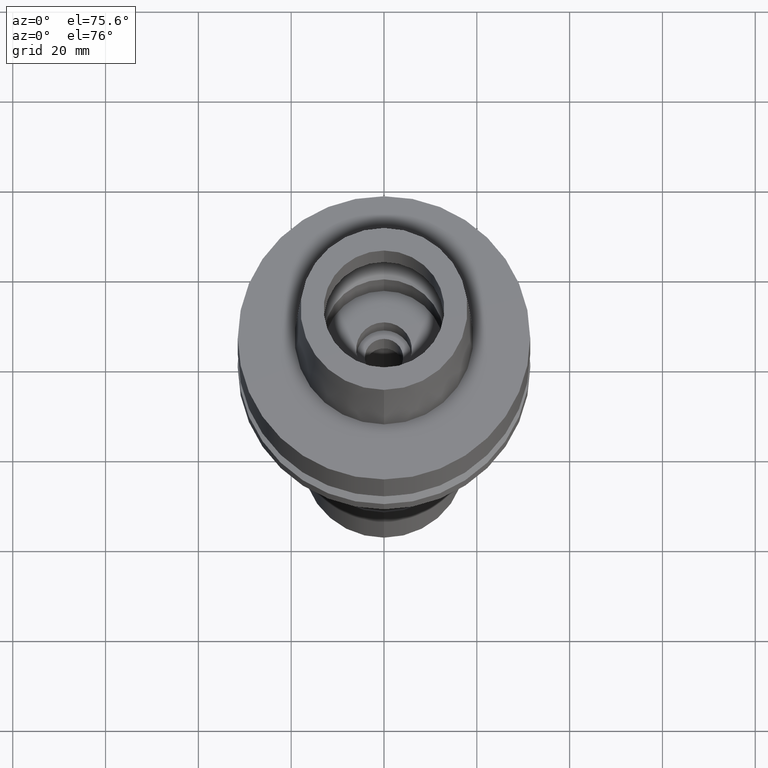
[diagram: clean part render]
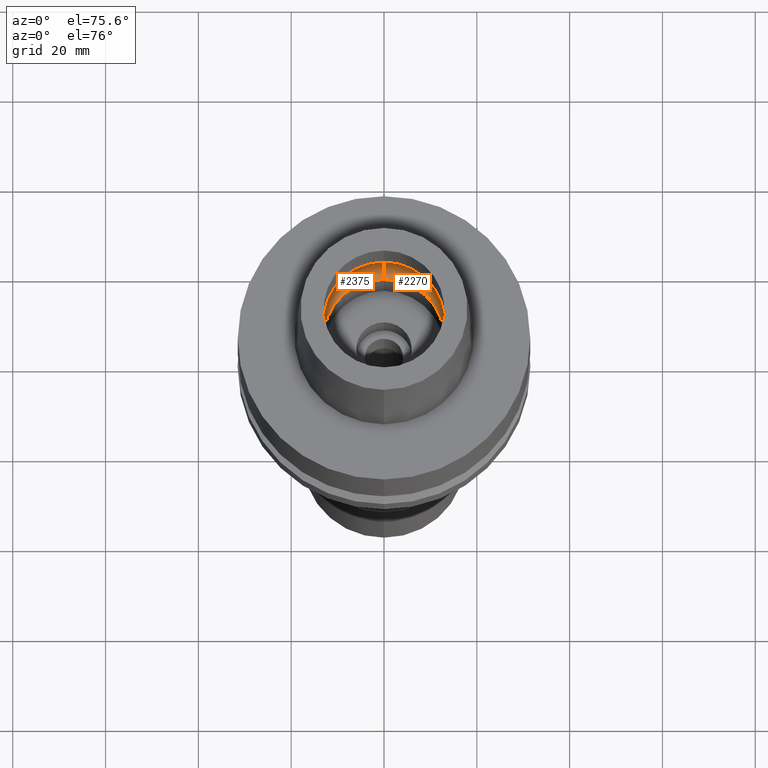
[diagram: same view with one multi-face feature highlighted, each face labeled with its STEP entity id]
A machine part, auxiliary view. The highlighted faces form ONE feature: a constant-radius fillet chain: 2 tangent blend faces with common blend radius 6 mm. The faces share edges in the B-rep.
Their STEP definitions:
[1] entity #2270 (Torus):
#290 = CIRCLE ( 'NONE', #1374, 6.000000000000000000 ) ;
#330 = DIRECTION ( 'NONE',  ( 0.0000000000000000000, 0.5000000000000169864, -0.8660254037844289376 ) ) ;
#352 = EDGE_LOOP ( 'NONE', ( #2171, #2333, #1375, #606 ) ) ;
#501 = DIRECTION ( 'NONE',  ( 0.0000000000000000000, 1.000000000000000000, 0.0000000000000000000 ) ) ;
#533 = CARTESIAN_POINT ( 'NONE',  ( 0.0000000000000000000, 0.0000000000000000000, 5.245999999999999552 ) ) ;
#594 = TOROIDAL_SURFACE ( 'NONE', #2637, 10.00000000000000000, 6.000000000000000000 ) ;
#606 = ORIENTED_EDGE ( 'NONE', *, *, #924, .F. ) ;
#614 = DIRECTION ( 'NONE',  ( 0.0000000000000000000, 0.0000000000000000000, 1.000000000000000000 ) ) ;
#695 = VERTEX_POINT ( 'NONE', #736 ) ;
#736 = CARTESIAN_POINT ( 'NONE',  ( 0.0000000000000000000, 16.00000000000000000, 5.245999999999999552 ) ) ;
#826 = CARTESIAN_POINT ( 'NONE',  ( 0.0000000000000000000, 0.0000000000000000000, 0.04984757729334999415 ) ) ;
#924 = EDGE_CURVE ( 'NONE', #1176, #695, #290, .T. ) ;
#929 = CARTESIAN_POINT ( 'NONE',  ( 0.0000000000000000000, 13.00000000000000000, 0.04984757729336000004 ) ) ;
#969 = DIRECTION ( 'NONE',  ( 0.0000000000000000000, 0.0000000000000000000, 1.000000000000000000 ) ) ;
#1073 = DIRECTION ( 'NONE',  ( 0.0000000000000000000, 0.0000000000000000000, -1.000000000000000000 ) ) ;
#1176 = VERTEX_POINT ( 'NONE', #929 ) ;
#1228 = CARTESIAN_POINT ( 'NONE',  ( 0.0000000000000000000, 10.00000000000000000, 5.245999999999999552 ) ) ;
#1305 = VERTEX_POINT ( 'NONE', #2122 ) ;
#1374 = AXIS2_PLACEMENT_3D ( 'NONE', #1228, #1447, #330 ) ;
#1375 = ORIENTED_EDGE ( 'NONE', *, *, #1438, .F. ) ;
#1422 = EDGE_CURVE ( 'NONE', #1305, #1176, #2032, .T. ) ;
#1438 = EDGE_CURVE ( 'NONE', #695, #2583, #2640, .T. ) ;
#1447 = DIRECTION ( 'NONE',  ( 1.000000000000000000, 0.0000000000000000000, 0.0000000000000000000 ) ) ;
#1526 = DIRECTION ( 'NONE',  ( 0.0000000000000000000, -1.000000000000000000, 0.0000000000000000000 ) ) ;
#1538 = AXIS2_PLACEMENT_3D ( 'NONE', #826, #614, #1526 ) ;
#2032 = CIRCLE ( 'NONE', #1538, 13.00000000000000000 ) ;
#2070 = FACE_OUTER_BOUND ( 'NONE', #352, .T. ) ;
#2122 = CARTESIAN_POINT ( 'NONE',  ( 0.0000000000000000000, -13.00000000000000000, 0.04984757729334999415 ) ) ;
#2171 = ORIENTED_EDGE ( 'NONE', *, *, #1422, .F. ) ;
#2270 = ADVANCED_FACE ( 'NONE', ( #2070 ), #594, .F. ) ;
#2310 = AXIS2_PLACEMENT_3D ( 'NONE', #2453, #2736, #2519 ) ;
#2313 = CIRCLE ( 'NONE', #2310, 6.000000000000000000 ) ;
#2333 = ORIENTED_EDGE ( 'NONE', *, *, #2371, .T. ) ;
#2367 = CARTESIAN_POINT ( 'NONE',  ( 0.0000000000000000000, 0.0000000000000000000, 5.245999999999999552 ) ) ;
#2371 = EDGE_CURVE ( 'NONE', #1305, #2583, #2313, .T. ) ;
#2453 = CARTESIAN_POINT ( 'NONE',  ( 0.0000000000000000000, -10.00000000000000000, 5.245999999999999552 ) ) ;
#2519 = DIRECTION ( 'NONE',  ( 0.0000000000000000000, -0.5000000000000169864, -0.8660254037844289376 ) ) ;
#2532 = CARTESIAN_POINT ( 'NONE',  ( 0.0000000000000000000, -16.00000000000000000, 5.245999999999999552 ) ) ;
#2583 = VERTEX_POINT ( 'NONE', #2532 ) ;
#2637 = AXIS2_PLACEMENT_3D ( 'NONE', #533, #969, #501 ) ;
#2640 = CIRCLE ( 'NONE', #2779, 16.00000000000000000 ) ;
#2736 = DIRECTION ( 'NONE',  ( -1.000000000000000000, 0.0000000000000000000, 0.0000000000000000000 ) ) ;
#2779 = AXIS2_PLACEMENT_3D ( 'NONE', #2367, #1073, #2818 ) ;
#2818 = DIRECTION ( 'NONE',  ( 0.0000000000000000000, 1.000000000000000000, 0.0000000000000000000 ) ) ;
[2] entity #2375 (Torus):
#290 = CIRCLE ( 'NONE', #1374, 6.000000000000000000 ) ;
#301 = DIRECTION ( 'NONE',  ( 0.0000000000000000000, 1.000000000000000000, 0.0000000000000000000 ) ) ;
#322 = ORIENTED_EDGE ( 'NONE', *, *, #329, .F. ) ;
#329 = EDGE_CURVE ( 'NONE', #1176, #1305, #2418, .T. ) ;
#330 = DIRECTION ( 'NONE',  ( 0.0000000000000000000, 0.5000000000000169864, -0.8660254037844289376 ) ) ;
#571 = AXIS2_PLACEMENT_3D ( 'NONE', #2240, #2291, #2452 ) ;
#580 = ORIENTED_EDGE ( 'NONE', *, *, #716, .F. ) ;
#695 = VERTEX_POINT ( 'NONE', #736 ) ;
#705 = CIRCLE ( 'NONE', #571, 16.00000000000000000 ) ;
#716 = EDGE_CURVE ( 'NONE', #2583, #695, #705, .T. ) ;
#736 = CARTESIAN_POINT ( 'NONE',  ( 0.0000000000000000000, 16.00000000000000000, 5.245999999999999552 ) ) ;
#924 = EDGE_CURVE ( 'NONE', #1176, #695, #290, .T. ) ;
#929 = CARTESIAN_POINT ( 'NONE',  ( 0.0000000000000000000, 13.00000000000000000, 0.04984757729336000004 ) ) ;
#1102 = ORIENTED_EDGE ( 'NONE', *, *, #924, .T. ) ;
#1176 = VERTEX_POINT ( 'NONE', #929 ) ;
#1185 = FACE_OUTER_BOUND ( 'NONE', #2769, .T. ) ;
#1195 = DIRECTION ( 'NONE',  ( 0.0000000000000000000, 0.0000000000000000000, 1.000000000000000000 ) ) ;
#1228 = CARTESIAN_POINT ( 'NONE',  ( 0.0000000000000000000, 10.00000000000000000, 5.245999999999999552 ) ) ;
#1305 = VERTEX_POINT ( 'NONE', #2122 ) ;
#1374 = AXIS2_PLACEMENT_3D ( 'NONE', #1228, #1447, #330 ) ;
#1395 = DIRECTION ( 'NONE',  ( 0.0000000000000000000, 1.000000000000000000, 0.0000000000000000000 ) ) ;
#1435 = DIRECTION ( 'NONE',  ( 0.0000000000000000000, 0.0000000000000000000, 1.000000000000000000 ) ) ;
#1446 = AXIS2_PLACEMENT_3D ( 'NONE', #2292, #1435, #301 ) ;
#1447 = DIRECTION ( 'NONE',  ( 1.000000000000000000, 0.0000000000000000000, 0.0000000000000000000 ) ) ;
#1624 = CARTESIAN_POINT ( 'NONE',  ( 0.0000000000000000000, 0.0000000000000000000, 0.04984757729334999415 ) ) ;
#1775 = ORIENTED_EDGE ( 'NONE', *, *, #2371, .F. ) ;
#2122 = CARTESIAN_POINT ( 'NONE',  ( 0.0000000000000000000, -13.00000000000000000, 0.04984757729334999415 ) ) ;
#2143 = AXIS2_PLACEMENT_3D ( 'NONE', #1624, #1195, #1395 ) ;
#2240 = CARTESIAN_POINT ( 'NONE',  ( 0.0000000000000000000, 0.0000000000000000000, 5.245999999999999552 ) ) ;
#2291 = DIRECTION ( 'NONE',  ( 0.0000000000000000000, 0.0000000000000000000, -1.000000000000000000 ) ) ;
#2292 = CARTESIAN_POINT ( 'NONE',  ( 0.0000000000000000000, 0.0000000000000000000, 5.245999999999999552 ) ) ;
#2310 = AXIS2_PLACEMENT_3D ( 'NONE', #2453, #2736, #2519 ) ;
#2313 = CIRCLE ( 'NONE', #2310, 6.000000000000000000 ) ;
#2371 = EDGE_CURVE ( 'NONE', #1305, #2583, #2313, .T. ) ;
#2375 = ADVANCED_FACE ( 'NONE', ( #1185 ), #2680, .F. ) ;
#2418 = CIRCLE ( 'NONE', #2143, 13.00000000000000000 ) ;
#2452 = DIRECTION ( 'NONE',  ( 0.0000000000000000000, -1.000000000000000000, 0.0000000000000000000 ) ) ;
#2453 = CARTESIAN_POINT ( 'NONE',  ( 0.0000000000000000000, -10.00000000000000000, 5.245999999999999552 ) ) ;
#2519 = DIRECTION ( 'NONE',  ( 0.0000000000000000000, -0.5000000000000169864, -0.8660254037844289376 ) ) ;
#2532 = CARTESIAN_POINT ( 'NONE',  ( 0.0000000000000000000, -16.00000000000000000, 5.245999999999999552 ) ) ;
#2583 = VERTEX_POINT ( 'NONE', #2532 ) ;
#2680 = TOROIDAL_SURFACE ( 'NONE', #1446, 10.00000000000000000, 6.000000000000000000 ) ;
#2736 = DIRECTION ( 'NONE',  ( -1.000000000000000000, 0.0000000000000000000, 0.0000000000000000000 ) ) ;
#2769 = EDGE_LOOP ( 'NONE', ( #580, #1775, #322, #1102 ) ) ;